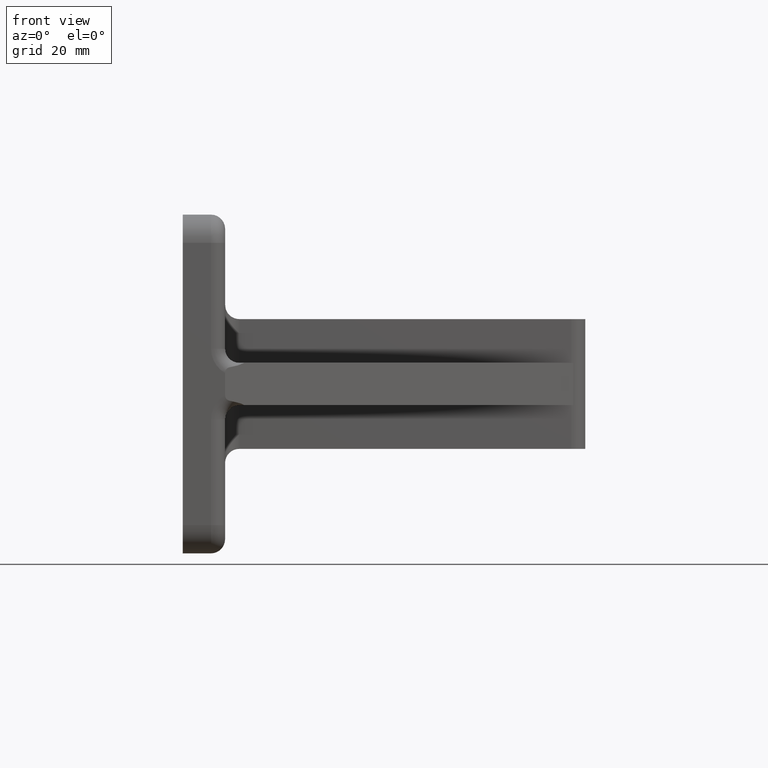
[diagram: clean part render]
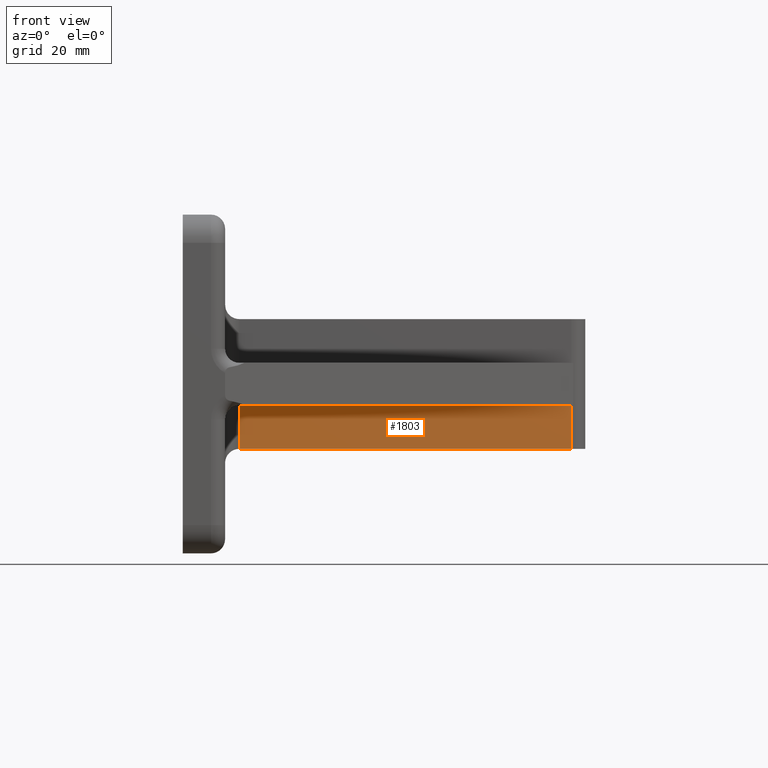
[diagram: same view with one face highlighted and labeled with its STEP entity id]
A machine part, front view. The second image highlights one B-rep face of the part: STEP entity #1803.
In plain terms, the highlighted planar face has unit normal (0, 1, -0).
Its self-contained STEP definition (entity closure, byte-faithful):
#23 = CARTESIAN_POINT ( 'NONE',  ( 1.088993694186518600, 1.979496558212011900, -0.5749999999999999600 ) ) ;
#72 = ORIENTED_EDGE ( 'NONE', *, *, #1128, .F. ) ;
#73 = ORIENTED_EDGE ( 'NONE', *, *, #1130, .T. ) ;
#74 = ORIENTED_EDGE ( 'NONE', *, *, #725, .T. ) ;
#75 = ORIENTED_EDGE ( 'NONE', *, *, #111, .T. ) ;
#111 = EDGE_CURVE ( 'NONE', #677, #167, #212, .T. ) ;
#121 = VERTEX_POINT ( 'NONE', #23 ) ;
#167 = VERTEX_POINT ( 'NONE', #654 ) ;
#209 = VECTOR ( 'NONE', #322, 39.37007874015748100 ) ;
#212 = LINE ( 'NONE', #321, #209 ) ;
#266 = CARTESIAN_POINT ( 'NONE',  ( 4.028993694186515200, 1.979496558212011900, -0.5749999999999999600 ) ) ;
#267 = CARTESIAN_POINT ( 'NONE',  ( 4.028993694186515200, 1.979496558212011600, -0.1875000000000000300 ) ) ;
#275 = CARTESIAN_POINT ( 'NONE',  ( 1.088993694186518600, 1.979496558212011900, 0.5749999999999999600 ) ) ;
#276 = DIRECTION ( 'NONE',  ( 0.0000000000000000000, 0.0000000000000000000, -1.000000000000000000 ) ) ;
#321 = CARTESIAN_POINT ( 'NONE',  ( 4.028993694186515200, 1.979496558212011900, -0.1875000000000000600 ) ) ;
#322 = DIRECTION ( 'NONE',  ( -1.000000000000000000, 0.0000000000000000000, 0.0000000000000000000 ) ) ;
#415 = CARTESIAN_POINT ( 'NONE',  ( 4.028993694186515200, 1.979496558212011900, 0.5749999999999999600 ) ) ;
#423 = PLANE ( 'NONE',  #1867 ) ;
#428 = DIRECTION ( 'NONE',  ( 0.0000000000000000000, 1.000000000000000000, -0.0000000000000000000 ) ) ;
#429 = DIRECTION ( 'NONE',  ( 0.0000000000000000000, 0.0000000000000000000, 1.000000000000000000 ) ) ;
#654 = CARTESIAN_POINT ( 'NONE',  ( 1.088993694186518600, 1.979496558212011900, -0.1875000000000000600 ) ) ;
#675 = VERTEX_POINT ( 'NONE', #266 ) ;
#677 = VERTEX_POINT ( 'NONE', #267 ) ;
#725 = EDGE_CURVE ( 'NONE', #167, #121, #1247, .T. ) ;
#785 = FACE_OUTER_BOUND ( 'NONE', #1388, .T. ) ;
#1011 = VECTOR ( 'NONE', #276, 39.37007874015748100 ) ;
#1048 = CARTESIAN_POINT ( 'NONE',  ( 4.028993694186515200, 1.979496558212011900, 0.5749999999999999600 ) ) ;
#1049 = DIRECTION ( 'NONE',  ( -0.0000000000000000000, -0.0000000000000000000, -1.000000000000000000 ) ) ;
#1052 = CARTESIAN_POINT ( 'NONE',  ( 4.028993694186515200, 1.979496558212011900, -0.5749999999999999600 ) ) ;
#1053 = DIRECTION ( 'NONE',  ( 1.000000000000000000, -0.0000000000000000000, -0.0000000000000000000 ) ) ;
#1128 = EDGE_CURVE ( 'NONE', #677, #675, #1284, .T. ) ;
#1130 = EDGE_CURVE ( 'NONE', #121, #675, #1288, .T. ) ;
#1247 = LINE ( 'NONE', #275, #1011 ) ;
#1284 = LINE ( 'NONE', #1048, #1285 ) ;
#1285 = VECTOR ( 'NONE', #1049, 39.37007874015748100 ) ;
#1288 = LINE ( 'NONE', #1052, #1289 ) ;
#1289 = VECTOR ( 'NONE', #1053, 39.37007874015748100 ) ;
#1388 = EDGE_LOOP ( 'NONE', ( #75, #74, #73, #72 ) ) ;
#1803 = ADVANCED_FACE ( 'NONE', ( #785 ), #423, .F. ) ;
#1867 = AXIS2_PLACEMENT_3D ( 'NONE', #415, #428, #429 ) ;